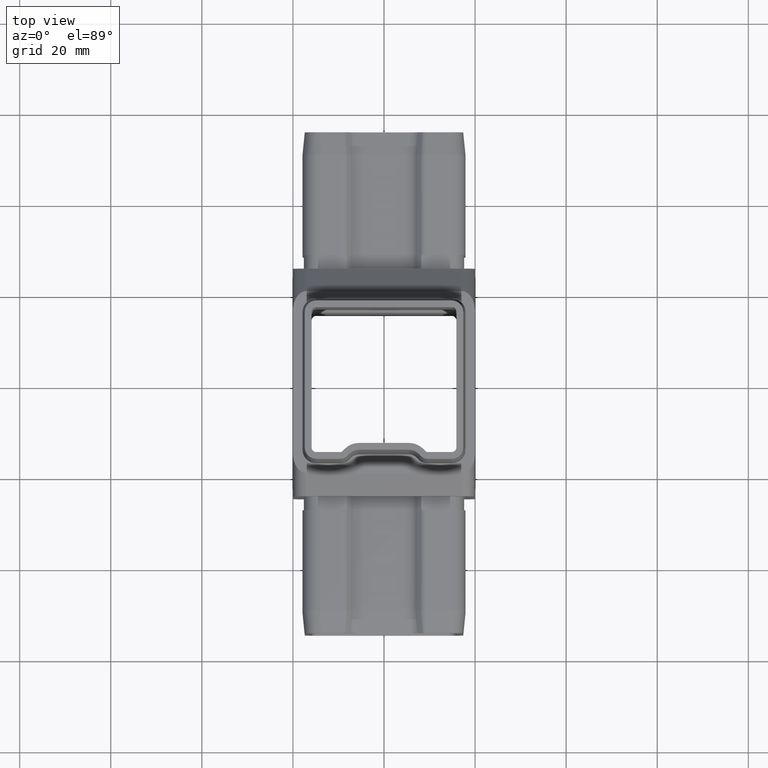
[diagram: clean part render]
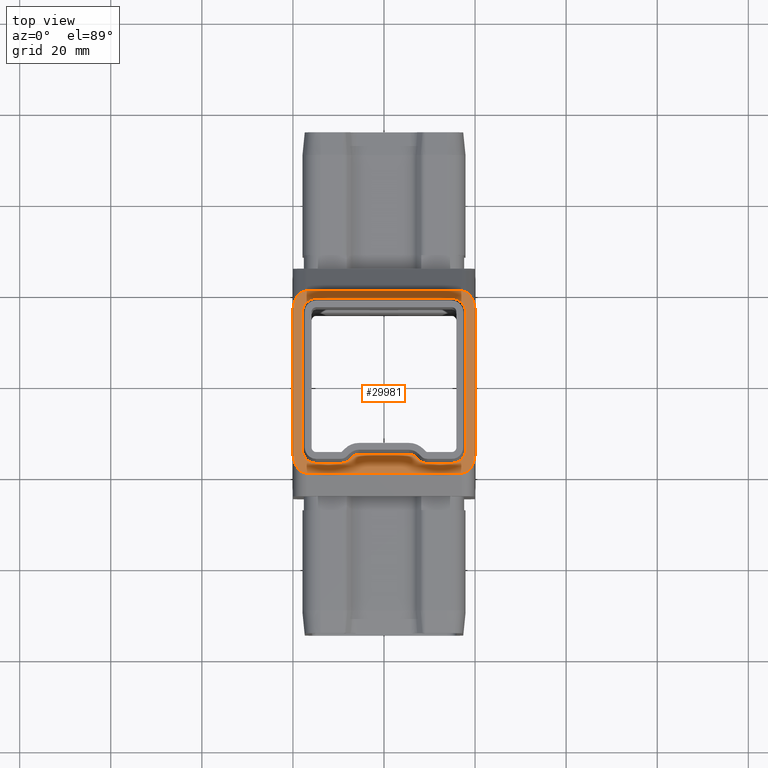
[diagram: same view with one face highlighted and labeled with its STEP entity id]
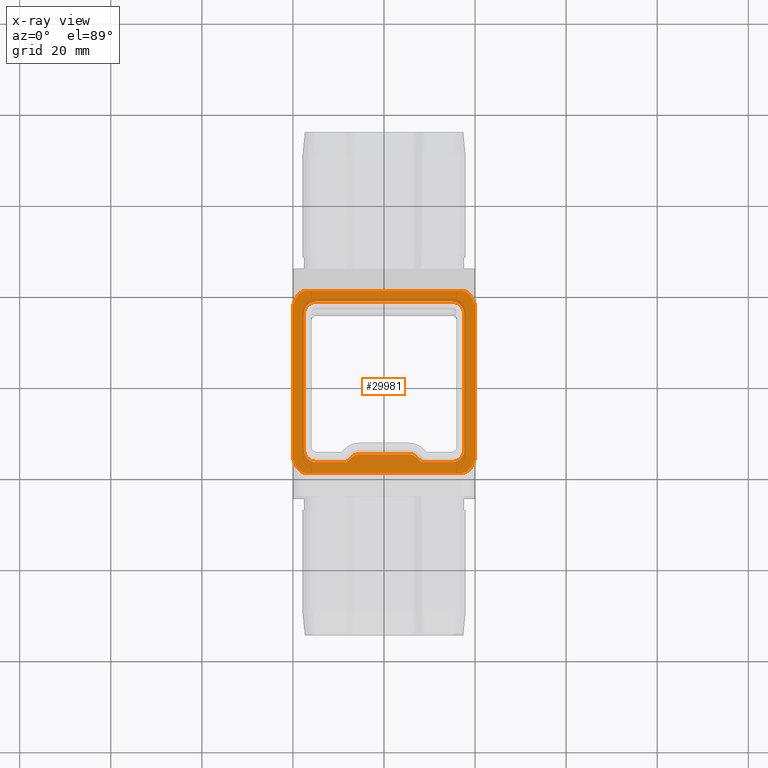
[diagram: x-ray of the same camera — body ghosted, the highlighted face saturated]
A machine part, top view. The second image highlights one B-rep face of the part: STEP entity #29981.
The next image is the same camera in x-ray: the body ghosted, the highlighted face saturated — about 12% of this face is hidden behind the body in this view.
In plain terms, the highlighted planar face has unit normal (-0, 0, 1).
Its self-contained STEP definition (entity closure, byte-faithful):
#105 = FACE_BOUND ( 'NONE', #7435, .T. ) ;
#313 = DIRECTION ( 'NONE',  ( -1.000000000000000000, 0.0000000000000000000, 0.0000000000000000000 ) ) ;
#318 = VECTOR ( 'NONE', #21345, 1000.000000000000000 ) ;
#453 = CARTESIAN_POINT ( 'NONE',  ( 19.99999999999999600, 15.75735931288067900, 25.00000000000000000 ) ) ;
#558 = ORIENTED_EDGE ( 'NONE', *, *, #9985, .T. ) ;
#629 = DIRECTION ( 'NONE',  ( 0.0000000000000000000, 0.0000000000000000000, 1.000000000000000000 ) ) ;
#669 = EDGE_CURVE ( 'NONE', #9749, #5751, #18219, .T. ) ;
#806 = CARTESIAN_POINT ( 'NONE',  ( -9.518574986800866000, -15.44094245257133800, 25.00000000000000000 ) ) ;
#928 = CIRCLE ( 'NONE', #20476, 2.699999999999990400 ) ;
#1008 = EDGE_CURVE ( 'NONE', #5751, #25578, #9136, .T. ) ;
#1034 = ORIENTED_EDGE ( 'NONE', *, *, #1008, .T. ) ;
#1125 = EDGE_CURVE ( 'NONE', #6073, #15503, #24208, .T. ) ;
#1286 =( BOUNDED_CURVE ( )  B_SPLINE_CURVE ( 3, ( #19523, #5194, #22042, #10128 ),
 .UNSPECIFIED., .F., .F. ) 
 B_SPLINE_CURVE_WITH_KNOTS ( ( 4, 4 ),
 ( 4.712388980384689700, 6.283185307179586200 ),
 .UNSPECIFIED. ) 
 CURVE ( )  GEOMETRIC_REPRESENTATION_ITEM ( )  RATIONAL_B_SPLINE_CURVE ( ( 1.000000000000000000, 0.8047378541243649400, 0.8047378541243649400, 1.000000000000000000 ) ) 
 REPRESENTATION_ITEM ( '' )  );
#1506 = CARTESIAN_POINT ( 'NONE',  ( -7.220241280313889100, -16.62024128031388800, 25.00000000000000000 ) ) ;
#1554 = DIRECTION ( 'NONE',  ( 1.000000000000000000, 0.0000000000000000000, 0.0000000000000000000 ) ) ;
#1643 = CIRCLE ( 'NONE', #11716, 2.699999999999987300 ) ;
#1743 = LINE ( 'NONE', #4058, #6689 ) ;
#1755 = CARTESIAN_POINT ( 'NONE',  ( -14.90000000000001100, -17.59999999999998700, 25.00000000000000000 ) ) ;
#2321 = CARTESIAN_POINT ( 'NONE',  ( -20.00000000000000700, 25.00000000000000000, 25.00000000000000000 ) ) ;
#2399 = CARTESIAN_POINT ( 'NONE',  ( -20.00000000000001400, 18.24264068711925500, 25.00000000000000000 ) ) ;
#2423 = DIRECTION ( 'NONE',  ( -1.000000000000000000, -1.164243943608595200E-016, 0.0000000000000000000 ) ) ;
#2607 = VERTEX_POINT ( 'NONE', #4711 ) ;
#2934 = DIRECTION ( 'NONE',  ( -0.0000000000000000000, -0.0000000000000000000, -1.000000000000000000 ) ) ;
#3107 = AXIS2_PLACEMENT_3D ( 'NONE', #11063, #3538, #25475 ) ;
#3232 = DIRECTION ( 'NONE',  ( 1.000000000000000000, 0.0000000000000000000, 0.0000000000000000000 ) ) ;
#3481 = DIRECTION ( 'NONE',  ( -1.000000000000000000, -0.0000000000000000000, -0.0000000000000000000 ) ) ;
#3538 = DIRECTION ( 'NONE',  ( -0.0000000000000000000, -0.0000000000000000000, -1.000000000000000000 ) ) ;
#3870 = CARTESIAN_POINT ( 'NONE',  ( -17.00000000000000700, 19.99999999999997500, 25.00000000000000000 ) ) ;
#3908 = VECTOR ( 'NONE', #19226, 1000.000000000000000 ) ;
#3921 = LINE ( 'NONE', #10165, #4310 ) ;
#4058 = CARTESIAN_POINT ( 'NONE',  ( -17.59999999999999800, -14.89999999999999100, 25.00000000000000000 ) ) ;
#4111 = CARTESIAN_POINT ( 'NONE',  ( -20.00000000000000400, 15.75735931288067900, 25.00000000000000000 ) ) ;
#4245 = CARTESIAN_POINT ( 'NONE',  ( -18.75735931288071600, -20.00000000000000400, 25.00000000000000400 ) ) ;
#4300 = CARTESIAN_POINT ( 'NONE',  ( 7.779758719686107300, -17.17975871968609900, 25.00000000000000000 ) ) ;
#4310 = VECTOR ( 'NONE', #3481, 1000.000000000000000 ) ;
#4516 = VECTOR ( 'NONE', #30485, 1000.000000000000000 ) ;
#4592 = CARTESIAN_POINT ( 'NONE',  ( -14.90000000000000700, -14.89999999999999700, 25.00000000000000000 ) ) ;
#4711 = CARTESIAN_POINT ( 'NONE',  ( -14.90000000000000000, 17.59999999999996200, 25.00000000000000000 ) ) ;
#5010 = ORIENTED_EDGE ( 'NONE', *, *, #16742, .T. ) ;
#5194 = CARTESIAN_POINT ( 'NONE',  ( 19.99999999999998600, 18.24264068711925500, 25.00000000000000000 ) ) ;
#5322 = CARTESIAN_POINT ( 'NONE',  ( 14.89999999999999300, 14.89999999999997500, 25.00000000000000000 ) ) ;
#5402 = CARTESIAN_POINT ( 'NONE',  ( -14.90000000000000700, 14.89999999999997500, 25.00000000000000000 ) ) ;
#5478 = VERTEX_POINT ( 'NONE', #27935 ) ;
#5572 = DIRECTION ( 'NONE',  ( -1.000000000000000000, -1.164243943608595200E-016, 0.0000000000000000000 ) ) ;
#5688 = DIRECTION ( 'NONE',  ( 0.0000000000000000000, 0.0000000000000000000, 1.000000000000000000 ) ) ;
#5751 = VERTEX_POINT ( 'NONE', #8393 ) ;
#5797 = DIRECTION ( 'NONE',  ( -1.000000000000000000, 0.0000000000000000000, 0.0000000000000000000 ) ) ;
#6073 = VERTEX_POINT ( 'NONE', #14477 ) ;
#6227 = AXIS2_PLACEMENT_3D ( 'NONE', #5322, #2934, #313 ) ;
#6289 = DIRECTION ( 'NONE',  ( -1.000000000000000000, 0.0000000000000000000, 0.0000000000000000000 ) ) ;
#6322 = CARTESIAN_POINT ( 'NONE',  ( 17.00000000000000000, -20.00000000000000400, 25.00000000000000000 ) ) ;
#6531 = DIRECTION ( 'NONE',  ( 1.164243943608596400E-016, 1.000000000000000000, 0.0000000000000000000 ) ) ;
#6594 = CARTESIAN_POINT ( 'NONE',  ( 19.99999999999999300, 25.00000000000000000, 25.00000000000000000 ) ) ;
#6617 = ORIENTED_EDGE ( 'NONE', *, *, #22314, .T. ) ;
#6689 = VECTOR ( 'NONE', #6531, 1000.000000000000000 ) ;
#7017 = DIRECTION ( 'NONE',  ( -1.000000000000000000, 0.0000000000000000000, 0.0000000000000000000 ) ) ;
#7097 = CARTESIAN_POINT ( 'NONE',  ( -20.00000000000000400, 15.75735931288067900, 25.00000000000000000 ) ) ;
#7116 = ORIENTED_EDGE ( 'NONE', *, *, #669, .T. ) ;
#7207 = CARTESIAN_POINT ( 'NONE',  ( -14.90000000000000000, 17.59999999999996200, 25.00000000000000000 ) ) ;
#7318 = DIRECTION ( 'NONE',  ( 2.081668171172168500E-016, -1.000000000000000000, 0.0000000000000000000 ) ) ;
#7435 = EDGE_LOOP ( 'NONE', ( #6617, #30062, #19347, #22538, #15815, #28085, #7116, #1034, #28227, #30029, #17538, #10711, #12800, #9268, #21300, #13906, #21355 ) ) ;
#7562 = EDGE_CURVE ( 'NONE', #28644, #12127, #19792, .T. ) ;
#7570 = DIRECTION ( 'NONE',  ( 0.0000000000000000000, -1.000000000000000000, 0.0000000000000000000 ) ) ;
#7657 = EDGE_CURVE ( 'NONE', #26072, #2607, #1643, .T. ) ;
#7727 = DIRECTION ( 'NONE',  ( -1.000000000000000000, 0.0000000000000000000, 0.0000000000000000000 ) ) ;
#8393 = CARTESIAN_POINT ( 'NONE',  ( 17.59999999999999100, 14.89999999999997400, 25.00000000000000000 ) ) ;
#8787 = AXIS2_PLACEMENT_3D ( 'NONE', #25898, #11061, #1554 ) ;
#9124 = VECTOR ( 'NONE', #7318, 1000.000000000000000 ) ;
#9136 = LINE ( 'NONE', #9867, #14033 ) ;
#9268 = ORIENTED_EDGE ( 'NONE', *, *, #26129, .F. ) ;
#9278 = CARTESIAN_POINT ( 'NONE',  ( 16.99999999999999300, 19.99999999999997500, 25.00000000000000000 ) ) ;
#9424 = CARTESIAN_POINT ( 'NONE',  ( 17.59999999999999100, -14.89999999999999500, 25.00000000000000000 ) ) ;
#9485 = CARTESIAN_POINT ( 'NONE',  ( 18.75735931288071600, -20.00000000000000400, 25.00000000000000000 ) ) ;
#9516 = CARTESIAN_POINT ( 'NONE',  ( 20.00000000000000400, -20.00000000000000400, 25.00000000000000000 ) ) ;
#9589 = DIRECTION ( 'NONE',  ( 1.000000000000000000, -0.0000000000000000000, -0.0000000000000000000 ) ) ;
#9633 =( BOUNDED_CURVE ( )  B_SPLINE_CURVE ( 3, ( #14327, #9485, #11808, #16667 ),
 .UNSPECIFIED., .F., .F. ) 
 B_SPLINE_CURVE_WITH_KNOTS ( ( 4, 4 ),
 ( 0.0000000000000000000, 1.570796326794895700 ),
 .UNSPECIFIED. ) 
 CURVE ( )  GEOMETRIC_REPRESENTATION_ITEM ( )  RATIONAL_B_SPLINE_CURVE ( ( 1.000000000000000000, 0.8047378541243652700, 0.8047378541243652700, 1.000000000000000000 ) ) 
 REPRESENTATION_ITEM ( '' )  );
#9642 = VERTEX_POINT ( 'NONE', #3870 ) ;
#9749 = VERTEX_POINT ( 'NONE', #18257 ) ;
#9854 = AXIS2_PLACEMENT_3D ( 'NONE', #10259, #629, #12575 ) ;
#9867 = CARTESIAN_POINT ( 'NONE',  ( 17.59999999999999100, 14.89999999999997400, 25.00000000000000000 ) ) ;
#9985 = EDGE_CURVE ( 'NONE', #18429, #13184, #10623, .T. ) ;
#10096 = VERTEX_POINT ( 'NONE', #17022 ) ;
#10128 = CARTESIAN_POINT ( 'NONE',  ( 16.99999999999999300, 19.99999999999997500, 25.00000000000000000 ) ) ;
#10165 = CARTESIAN_POINT ( 'NONE',  ( 14.89999999999999300, 17.59999999999997300, 25.00000000000000000 ) ) ;
#10259 = CARTESIAN_POINT ( 'NONE',  ( 9.518574986800869600, -15.44094245257133700, 25.00000000000000000 ) ) ;
#10484 = EDGE_CURVE ( 'NONE', #2607, #23368, #23415, .T. ) ;
#10589 =( BOUNDED_CURVE ( )  B_SPLINE_CURVE ( 3, ( #21739, #17006, #2399, #7097 ),
 .UNSPECIFIED., .F., .F. ) 
 B_SPLINE_CURVE_WITH_KNOTS ( ( 4, 4 ),
 ( 0.0000000000000000000, 1.570796326794896600 ),
 .UNSPECIFIED. ) 
 CURVE ( )  GEOMETRIC_REPRESENTATION_ITEM ( )  RATIONAL_B_SPLINE_CURVE ( ( 1.000000000000000000, 0.8047378541243649400, 0.8047378541243649400, 1.000000000000000000 ) ) 
 REPRESENTATION_ITEM ( '' )  );
#10623 = LINE ( 'NONE', #2321, #9124 ) ;
#10711 = ORIENTED_EDGE ( 'NONE', *, *, #21077, .F. ) ;
#10748 = VERTEX_POINT ( 'NONE', #17928 ) ;
#10841 = CIRCLE ( 'NONE', #8787, 2.459057547428659300 ) ;
#10893 = VERTEX_POINT ( 'NONE', #1755 ) ;
#10919 = VECTOR ( 'NONE', #6289, 1000.000000000000000 ) ;
#11061 = DIRECTION ( 'NONE',  ( -0.0000000000000000000, -0.0000000000000000000, -1.000000000000000000 ) ) ;
#11063 = CARTESIAN_POINT ( 'NONE',  ( 14.89999999999999700, -14.89999999999999300, 25.00000000000000000 ) ) ;
#11495 = ORIENTED_EDGE ( 'NONE', *, *, #12676, .T. ) ;
#11612 = AXIS2_PLACEMENT_3D ( 'NONE', #806, #5688, #5797 ) ;
#11716 = AXIS2_PLACEMENT_3D ( 'NONE', #5402, #17315, #7727 ) ;
#11808 = CARTESIAN_POINT ( 'NONE',  ( 20.00000000000000000, -18.24264068711929800, 25.00000000000000000 ) ) ;
#11845 = AXIS2_PLACEMENT_3D ( 'NONE', #16375, #30569, #18600 ) ;
#11938 = CIRCLE ( 'NONE', #11845, 2.459057547428657600 ) ;
#12033 = VECTOR ( 'NONE', #9589, 1000.000000000000000 ) ;
#12064 = CARTESIAN_POINT ( 'NONE',  ( 14.89999999999999300, -17.59999999999998400, 25.00000000000000000 ) ) ;
#12127 = VERTEX_POINT ( 'NONE', #6322 ) ;
#12575 = DIRECTION ( 'NONE',  ( 1.000000000000000000, 0.0000000000000000000, 0.0000000000000000000 ) ) ;
#12676 = EDGE_CURVE ( 'NONE', #12127, #13422, #9633, .T. ) ;
#12765 = CARTESIAN_POINT ( 'NONE',  ( 0.0000000000000000000, 0.0000000000000000000, 25.00000000000000000 ) ) ;
#12800 = ORIENTED_EDGE ( 'NONE', *, *, #26839, .F. ) ;
#13184 = VERTEX_POINT ( 'NONE', #21053 ) ;
#13422 = VERTEX_POINT ( 'NONE', #28582 ) ;
#13870 = VERTEX_POINT ( 'NONE', #21081 ) ;
#13906 = ORIENTED_EDGE ( 'NONE', *, *, #18243, .F. ) ;
#14025 = LINE ( 'NONE', #19379, #19683 ) ;
#14033 = VECTOR ( 'NONE', #7570, 1000.000000000000000 ) ;
#14052 = CARTESIAN_POINT ( 'NONE',  ( -20.00000000000000000, -15.75735931288072700, 25.00000000000000000 ) ) ;
#14327 = CARTESIAN_POINT ( 'NONE',  ( 17.00000000000000000, -20.00000000000000400, 25.00000000000000000 ) ) ;
#14373 = EDGE_CURVE ( 'NONE', #10893, #10096, #928, .T. ) ;
#14477 = CARTESIAN_POINT ( 'NONE',  ( 14.89999999999999300, -17.59999999999998400, 25.00000000000000000 ) ) ;
#14661 = EDGE_CURVE ( 'NONE', #19333, #17037, #20162, .T. ) ;
#14871 = VERTEX_POINT ( 'NONE', #4300 ) ;
#15463 = CARTESIAN_POINT ( 'NONE',  ( -8.341530158233478400, -17.59999999999998700, 25.00000000000000000 ) ) ;
#15503 = VERTEX_POINT ( 'NONE', #22059 ) ;
#15815 = ORIENTED_EDGE ( 'NONE', *, *, #10484, .T. ) ;
#16060 = EDGE_CURVE ( 'NONE', #25578, #6073, #29666, .T. ) ;
#16209 = VERTEX_POINT ( 'NONE', #9278 ) ;
#16278 = CARTESIAN_POINT ( 'NONE',  ( -20.00000000000000400, -18.24264068711929100, 25.00000000000000400 ) ) ;
#16375 = CARTESIAN_POINT ( 'NONE',  ( -5.481425013199128700, -18.35905754742864800, 25.00000000000000000 ) ) ;
#16547 = ORIENTED_EDGE ( 'NONE', *, *, #18225, .T. ) ;
#16581 = LINE ( 'NONE', #6594, #318 ) ;
#16667 = CARTESIAN_POINT ( 'NONE',  ( 20.00000000000000000, -15.75735931288073400, 25.00000000000000000 ) ) ;
#16742 = EDGE_CURVE ( 'NONE', #9642, #18429, #10589, .T. ) ;
#16845 = EDGE_CURVE ( 'NONE', #29098, #16209, #1286, .T. ) ;
#17006 = CARTESIAN_POINT ( 'NONE',  ( -18.75735931288072300, 19.99999999999996800, 25.00000000000000000 ) ) ;
#17022 = CARTESIAN_POINT ( 'NONE',  ( -17.59999999999999800, -14.89999999999999100, 25.00000000000000000 ) ) ;
#17037 = VERTEX_POINT ( 'NONE', #26215 ) ;
#17228 = VECTOR ( 'NONE', #30184, 1000.000000000000000 ) ;
#17315 = DIRECTION ( 'NONE',  ( -0.0000000000000000000, -0.0000000000000000000, -1.000000000000000000 ) ) ;
#17378 = EDGE_LOOP ( 'NONE', ( #30315, #11495, #28188, #28573, #16547, #5010, #558, #25753 ) ) ;
#17502 = FACE_OUTER_BOUND ( 'NONE', #17378, .T. ) ;
#17538 = ORIENTED_EDGE ( 'NONE', *, *, #30970, .F. ) ;
#17819 = VECTOR ( 'NONE', #2423, 1000.000000000000000 ) ;
#17928 = CARTESIAN_POINT ( 'NONE',  ( 5.481425013199131300, -15.89999999999999000, 25.00000000000000000 ) ) ;
#18068 = LINE ( 'NONE', #21713, #12033 ) ;
#18219 = CIRCLE ( 'NONE', #6227, 2.699999999999997500 ) ;
#18225 = EDGE_CURVE ( 'NONE', #16209, #9642, #24480, .T. ) ;
#18243 = EDGE_CURVE ( 'NONE', #17037, #13870, #27868, .T. ) ;
#18257 = CARTESIAN_POINT ( 'NONE',  ( 14.89999999999999300, 17.59999999999997300, 25.00000000000000000 ) ) ;
#18429 = VERTEX_POINT ( 'NONE', #4111 ) ;
#18600 = DIRECTION ( 'NONE',  ( 1.000000000000000000, 0.0000000000000000000, 0.0000000000000000000 ) ) ;
#18719 = CARTESIAN_POINT ( 'NONE',  ( -17.00000000000000000, -20.00000000000000400, 25.00000000000000000 ) ) ;
#19146 = DIRECTION ( 'NONE',  ( -0.0000000000000000000, -0.0000000000000000000, -1.000000000000000000 ) ) ;
#19226 = DIRECTION ( 'NONE',  ( 1.000000000000000000, 0.0000000000000000000, 0.0000000000000000000 ) ) ;
#19333 = VERTEX_POINT ( 'NONE', #15463 ) ;
#19338 = CARTESIAN_POINT ( 'NONE',  ( 0.0000000000000000000, 17.59999999999997300, 25.00000000000000000 ) ) ;
#19347 = ORIENTED_EDGE ( 'NONE', *, *, #27240, .T. ) ;
#19379 = CARTESIAN_POINT ( 'NONE',  ( 14.89999999999999300, -17.59999999999998400, 25.00000000000000000 ) ) ;
#19523 = CARTESIAN_POINT ( 'NONE',  ( 19.99999999999999600, 15.75735931288067900, 25.00000000000000000 ) ) ;
#19662 =( BOUNDED_CURVE ( )  B_SPLINE_CURVE ( 3, ( #14052, #16278, #4245, #18719 ),
 .UNSPECIFIED., .F., .F. ) 
 B_SPLINE_CURVE_WITH_KNOTS ( ( 4, 4 ),
 ( 4.712388980384688800, 6.283185307179586200 ),
 .UNSPECIFIED. ) 
 CURVE ( )  GEOMETRIC_REPRESENTATION_ITEM ( )  RATIONAL_B_SPLINE_CURVE ( ( 1.000000000000000000, 0.8047378541243648300, 0.8047378541243648300, 1.000000000000000000 ) ) 
 REPRESENTATION_ITEM ( '' )  );
#19683 = VECTOR ( 'NONE', #5572, 1000.000000000000000 ) ;
#19738 = PLANE ( 'NONE',  #20571 ) ;
#19792 = LINE ( 'NONE', #9516, #3908 ) ;
#20013 = CARTESIAN_POINT ( 'NONE',  ( 7.779758719686108200, -17.17975871968609900, 25.00000000000000000 ) ) ;
#20162 = CIRCLE ( 'NONE', #11612, 2.459057547428656700 ) ;
#20305 = EDGE_CURVE ( 'NONE', #13184, #28644, #19662, .T. ) ;
#20476 = AXIS2_PLACEMENT_3D ( 'NONE', #4592, #19146, #7017 ) ;
#20571 = AXIS2_PLACEMENT_3D ( 'NONE', #12765, #24652, #3232 ) ;
#21053 = CARTESIAN_POINT ( 'NONE',  ( -20.00000000000000000, -15.75735931288072700, 25.00000000000000000 ) ) ;
#21077 = EDGE_CURVE ( 'NONE', #5478, #14871, #23605, .T. ) ;
#21081 = CARTESIAN_POINT ( 'NONE',  ( -7.220241280313892700, -16.62024128031388400, 25.00000000000000000 ) ) ;
#21300 = ORIENTED_EDGE ( 'NONE', *, *, #27982, .F. ) ;
#21345 = DIRECTION ( 'NONE',  ( 2.081668171172168500E-016, -1.000000000000000000, 0.0000000000000000000 ) ) ;
#21355 = ORIENTED_EDGE ( 'NONE', *, *, #14661, .F. ) ;
#21525 = CARTESIAN_POINT ( 'NONE',  ( -17.00000000000000000, -20.00000000000000400, 25.00000000000000000 ) ) ;
#21713 = CARTESIAN_POINT ( 'NONE',  ( 5.481425013199131300, -15.89999999999998800, 25.00000000000000000 ) ) ;
#21733 = DIRECTION ( 'NONE',  ( 1.000000000000000000, 2.328487887217189900E-016, 0.0000000000000000000 ) ) ;
#21739 = CARTESIAN_POINT ( 'NONE',  ( -17.00000000000000700, 19.99999999999997500, 25.00000000000000000 ) ) ;
#22042 = CARTESIAN_POINT ( 'NONE',  ( 18.75735931288070900, 19.99999999999996800, 25.00000000000000000 ) ) ;
#22059 = CARTESIAN_POINT ( 'NONE',  ( 8.341530158233483800, -17.59999999999998400, 25.00000000000000000 ) ) ;
#22314 = EDGE_CURVE ( 'NONE', #19333, #10893, #14025, .T. ) ;
#22513 = VERTEX_POINT ( 'NONE', #24680 ) ;
#22538 = ORIENTED_EDGE ( 'NONE', *, *, #7657, .T. ) ;
#23008 = CARTESIAN_POINT ( 'NONE',  ( 0.0000000000000000000, 19.99999999999997500, 25.00000000000000000 ) ) ;
#23368 = VERTEX_POINT ( 'NONE', #19338 ) ;
#23415 = LINE ( 'NONE', #7207, #25668 ) ;
#23605 = LINE ( 'NONE', #20013, #17228 ) ;
#23705 = CARTESIAN_POINT ( 'NONE',  ( -17.59999999999999400, 14.89999999999998100, 25.00000000000000000 ) ) ;
#24208 = LINE ( 'NONE', #12064, #17819 ) ;
#24328 = EDGE_CURVE ( 'NONE', #29098, #13422, #16581, .T. ) ;
#24480 = LINE ( 'NONE', #23008, #10919 ) ;
#24652 = DIRECTION ( 'NONE',  ( -0.0000000000000000000, 0.0000000000000000000, 1.000000000000000000 ) ) ;
#24680 = CARTESIAN_POINT ( 'NONE',  ( -5.481425013199128700, -15.89999999999998800, 25.00000000000000000 ) ) ;
#25475 = DIRECTION ( 'NONE',  ( -1.000000000000000000, 0.0000000000000000000, 0.0000000000000000000 ) ) ;
#25578 = VERTEX_POINT ( 'NONE', #9424 ) ;
#25668 = VECTOR ( 'NONE', #21733, 1000.000000000000000 ) ;
#25753 = ORIENTED_EDGE ( 'NONE', *, *, #20305, .T. ) ;
#25898 = CARTESIAN_POINT ( 'NONE',  ( 5.481425013199133100, -18.35905754742864800, 25.00000000000000000 ) ) ;
#26072 = VERTEX_POINT ( 'NONE', #23705 ) ;
#26129 = EDGE_CURVE ( 'NONE', #22513, #10748, #18068, .T. ) ;
#26215 = CARTESIAN_POINT ( 'NONE',  ( -7.779758719686104700, -17.17975871968610200, 25.00000000000000000 ) ) ;
#26839 = EDGE_CURVE ( 'NONE', #10748, #5478, #10841, .T. ) ;
#26864 = CIRCLE ( 'NONE', #9854, 2.459057547428654900 ) ;
#27240 = EDGE_CURVE ( 'NONE', #10096, #26072, #1743, .T. ) ;
#27868 = LINE ( 'NONE', #1506, #4516 ) ;
#27935 = CARTESIAN_POINT ( 'NONE',  ( 7.220241280313892700, -16.62024128031388400, 25.00000000000000000 ) ) ;
#27982 = EDGE_CURVE ( 'NONE', #13870, #22513, #11938, .T. ) ;
#28085 = ORIENTED_EDGE ( 'NONE', *, *, #29473, .F. ) ;
#28188 = ORIENTED_EDGE ( 'NONE', *, *, #24328, .F. ) ;
#28227 = ORIENTED_EDGE ( 'NONE', *, *, #16060, .T. ) ;
#28573 = ORIENTED_EDGE ( 'NONE', *, *, #16845, .T. ) ;
#28582 = CARTESIAN_POINT ( 'NONE',  ( 20.00000000000000000, -15.75735931288073400, 25.00000000000000000 ) ) ;
#28644 = VERTEX_POINT ( 'NONE', #21525 ) ;
#29098 = VERTEX_POINT ( 'NONE', #453 ) ;
#29473 = EDGE_CURVE ( 'NONE', #9749, #23368, #3921, .T. ) ;
#29666 = CIRCLE ( 'NONE', #3107, 2.699999999999994000 ) ;
#29981 = ADVANCED_FACE ( 'NONE', ( #105, #17502 ), #19738, .T. ) ;
#30029 = ORIENTED_EDGE ( 'NONE', *, *, #1125, .T. ) ;
#30062 = ORIENTED_EDGE ( 'NONE', *, *, #14373, .T. ) ;
#30184 = DIRECTION ( 'NONE',  ( 0.7071067811865481300, -0.7071067811865470200, -0.0000000000000000000 ) ) ;
#30315 = ORIENTED_EDGE ( 'NONE', *, *, #7562, .T. ) ;
#30485 = DIRECTION ( 'NONE',  ( 0.7071067811865481300, 0.7071067811865470200, -0.0000000000000000000 ) ) ;
#30569 = DIRECTION ( 'NONE',  ( -0.0000000000000000000, -0.0000000000000000000, -1.000000000000000000 ) ) ;
#30970 = EDGE_CURVE ( 'NONE', #14871, #15503, #26864, .T. ) ;